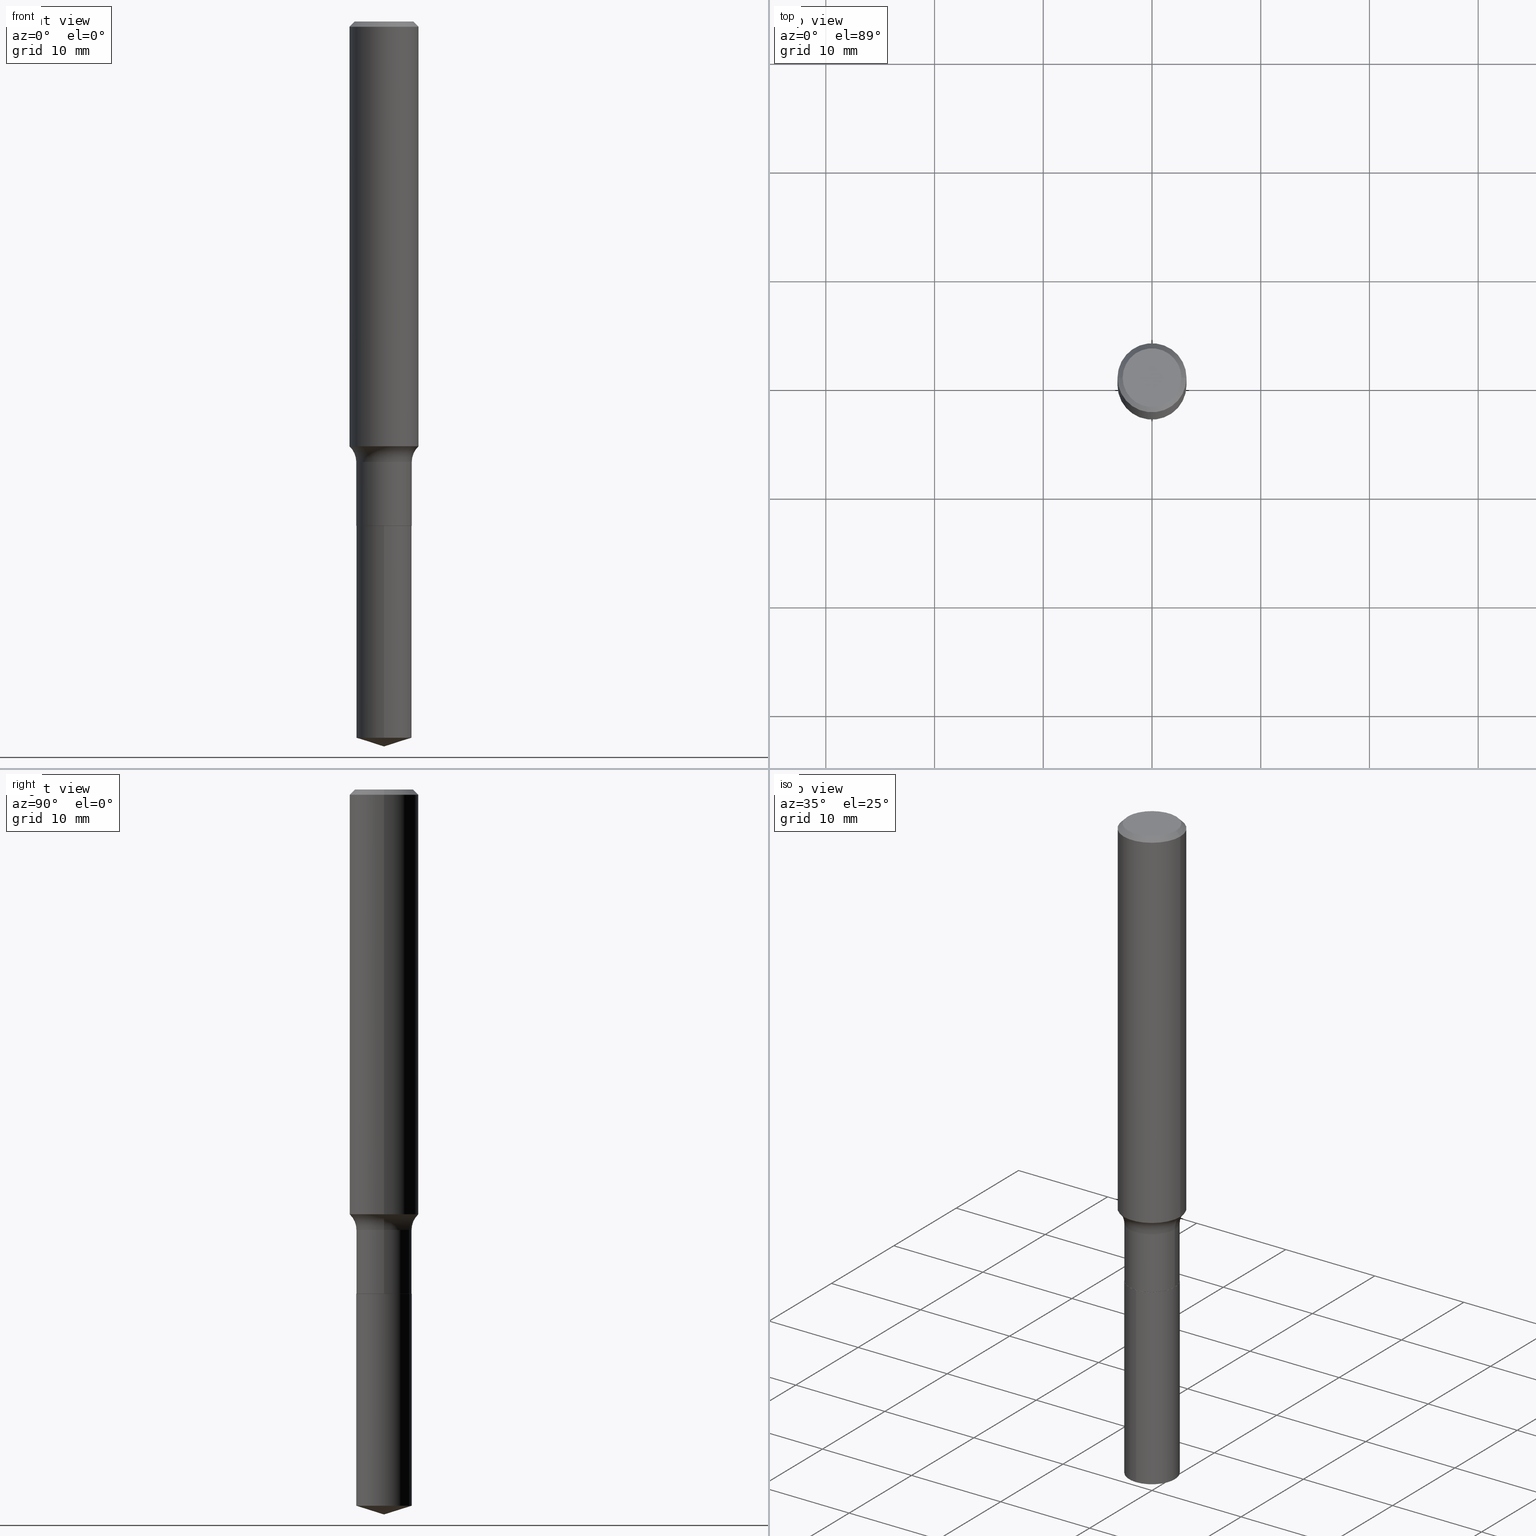
[diagram: canonical four-view strip — front | top / right | iso, engineering-drawing reading convention]
A machine part, canonical four-view strip (front | top / right | iso — engineering-drawing reading convention). The complete STEP part file that produces these views, byte-faithful:
ISO-10303-21;
HEADER;
FILE_DESCRIPTION (( 'STEP AP203' ),
    '1' );
FILE_NAME ('51338.STEP',
    '2024-04-19T12:49:06',
    ( '' ),
    ( '' ),
    'SwSTEP 2.0',
    'SolidWorks 2023',
    '' );
FILE_SCHEMA (( 'CONFIG_CONTROL_DESIGN' ));
ENDSEC;

DATA;
#1 = PRODUCT_DEFINITION_FORMATION_WITH_SPECIFIED_SOURCE ( 'ANY', '', #258, .NOT_KNOWN. ) ;
#2 = EDGE_CURVE ( 'NONE', #38, #292, #124, .T. ) ;
#3 = CARTESIAN_POINT ( 'NONE',  ( 4.585254011597162998E-31, -6.546527510330944066E-17, -0.01875000000000013115 ) ) ;
#4 = ORIENTED_EDGE ( 'NONE', *, *, #52, .T. ) ;
#5 = FACE_OUTER_BOUND ( 'NONE', #218, .T. ) ;
#6 = ORIENTED_EDGE ( 'NONE', *, *, #405, .F. ) ;
#7 =( LENGTH_UNIT ( ) NAMED_UNIT ( * ) SI_UNIT ( $, .METRE. ) );
#8 = ORIENTED_EDGE ( 'NONE', *, *, #235, .T. ) ;
#9 = CC_DESIGN_SECURITY_CLASSIFICATION ( #236, ( #1 ) ) ;
#10 = CARTESIAN_POINT ( 'NONE',  ( 4.585254011597162998E-31, -6.546527510330944066E-17, -0.01875000000000013115 ) ) ;
#11 = EDGE_LOOP ( 'NONE', ( #217, #4, #263, #307 ) ) ;
#12 = DIRECTION ( 'NONE',  ( -2.445468806185136877E-29, 3.491481338843145188E-15, 1.000000000000000000 ) ) ;
#13 = FACE_OUTER_BOUND ( 'NONE', #11, .T. ) ;
#14 = FACE_OUTER_BOUND ( 'NONE', #299, .T. ) ;
#15 = CLOSED_SHELL ( 'NONE', ( #134, #27, #157, #304, #317 ) ) ;
#16 = EDGE_CURVE ( 'NONE', #181, #146, #164, .T. ) ;
#17 = VECTOR ( 'NONE', #156, 39.37007874015748143 ) ;
#18 = CARTESIAN_POINT ( 'NONE',  ( 7.140954494389642327E-16, 0.1004999999999936361, -1.826000000000000512 ) ) ;
#19 = PERSON_AND_ORGANIZATION ( #75, #468 ) ;
#20 = CARTESIAN_POINT ( 'NONE',  ( 6.341812827357289971E-29, -9.054576463095092159E-15, -2.593312471717661882 ) ) ;
#21 = DATE_AND_TIME ( #68, #128 ) ;
#22 = CYLINDRICAL_SURFACE ( 'NONE', #257, 0.1004999999999999921 ) ;
#23 = APPLICATION_PROTOCOL_DEFINITION ( 'international standard', 'config_control_design', 1994, #331 ) ;
#24 = VECTOR ( 'NONE', #41, 39.37007874015748143 ) ;
#25 = CC_DESIGN_APPROVAL ( #314, ( #236 ) ) ;
#26 = CARTESIAN_POINT ( 'NONE',  ( 4.465426040094059556E-29, -6.375444924727584257E-15, -1.826000000000000068 ) ) ;
#27 = ADVANCED_FACE ( 'NONE', ( #464 ), #357, .T. ) ;
#28 = CALENDAR_DATE ( 2024, 19, 4 ) ;
#29 = ORIENTED_EDGE ( 'NONE', *, *, #376, .F. ) ;
#30 = EDGE_CURVE ( 'NONE', #88, #146, #55, .T. ) ;
#31 = AXIS2_PLACEMENT_3D ( 'NONE', #437, #280, #96 ) ;
#32 = AXIS2_PLACEMENT_3D ( 'NONE', #10, #394, #165 ) ;
#33 = VERTEX_POINT ( 'NONE', #237 ) ;
#34 = CARTESIAN_POINT ( 'NONE',  ( 4.465426040094059556E-29, -6.375444924727584257E-15, -1.826000000000000068 ) ) ;
#35 = EDGE_LOOP ( 'NONE', ( #74, #452 ) ) ;
#36 = DIRECTION ( 'NONE',  ( -2.445401132426348956E-29, 3.491578251517480594E-15, 1.000000000000000000 ) ) ;
#37 = CARTESIAN_POINT ( 'NONE',  ( 0.1000000000000000056, -7.073741192496210140E-15, -1.826000000000000068 ) ) ;
#38 = VERTEX_POINT ( 'NONE', #385 ) ;
#39 = EDGE_CURVE ( 'NONE', #77, #38, #268, .T. ) ;
#40 = FACE_OUTER_BOUND ( 'NONE', #70, .T. ) ;
#41 = DIRECTION ( 'NONE',  ( -2.445468806185136877E-29, 3.491481338843145188E-15, 1.000000000000000000 ) ) ;
#42 = LINE ( 'NONE', #315, #162 ) ;
#43 = ORIENTED_EDGE ( 'NONE', *, *, #363, .T. ) ;
#44 = EDGE_CURVE ( 'NONE', #114, #458, #390, .T. ) ;
#45 = VERTEX_POINT ( 'NONE', #211 ) ;
#46 = CIRCLE ( 'NONE', #251, 0.1250000000000000000 ) ;
#47 = AXIS2_PLACEMENT_3D ( 'NONE', #34, #36, #184 ) ;
#48 = DIRECTION ( 'NONE',  ( -2.445468806185136597E-29, 3.491481338843145583E-15, 1.000000000000000000 ) ) ;
#49 = ORIENTED_EDGE ( 'NONE', *, *, #279, .F. ) ;
#50 = FACE_OUTER_BOUND ( 'NONE', #80, .T. ) ;
#51 = DIRECTION ( 'NONE',  ( -6.982962677686265922E-15, -1.000000000000000000, 3.500519750498790812E-15 ) ) ;
#52 = EDGE_CURVE ( 'NONE', #77, #88, #118, .T. ) ;
#53 = DIRECTION ( 'NONE',  ( -2.445468806185136597E-29, 3.491481338843145583E-15, 1.000000000000000000 ) ) ;
#54 = CARTESIAN_POINT ( 'NONE',  ( -0.1784999999999999643, -4.299895655855270678E-15, -1.594800000000000217 ) ) ;
#55 = CIRCLE ( 'NONE', #411, 0.1004999999999999782 ) ;
#56 = COORDINATED_UNIVERSAL_TIME_OFFSET ( 5, 0, .BEHIND. ) ;
#57 = TOROIDAL_SURFACE ( 'NONE', #336, 0.1784999999999999643, 0.07799999999999995826 ) ;
#58 = MANIFOLD_SOLID_BREP ( 'Body-Move/Copy2[1]', #15 ) ;
#59 = DIRECTION ( 'NONE',  ( -6.982962677686265922E-15, -1.000000000000000000, 2.718256710113694497E-15 ) ) ;
#60 = COORDINATED_UNIVERSAL_TIME_OFFSET ( 5, 0, .BEHIND. ) ;
#61 = FACE_OUTER_BOUND ( 'NONE', #341, .T. ) ;
#62 = DATE_TIME_ROLE ( 'classification_date' ) ;
#63 = PRODUCT_DEFINITION ( 'UNKNOWN', '', #1, #360 ) ;
#64 = CARTESIAN_POINT ( 'NONE',  ( -0.1000000000000000056, -5.662252961793372239E-15, -1.826000000000000068 ) ) ;
#65 = CIRCLE ( 'NONE', #483, 0.1000000000000000056 ) ;
#66 = AXIS2_PLACEMENT_3D ( 'NONE', #308, #53, #201 ) ;
#67 = VERTEX_POINT ( 'NONE', #64 ) ;
#68 = CALENDAR_DATE ( 2024, 19, 4 ) ;
#69 = EDGE_CURVE ( 'NONE', #458, #492, #335, .T. ) ;
#70 = EDGE_LOOP ( 'NONE', ( #82, #107 ) ) ;
#71 = CARTESIAN_POINT ( 'NONE',  ( 4.585254011597162998E-31, -6.546527510330944066E-17, -0.01875000000000013115 ) ) ;
#72 = AXIS2_PLACEMENT_3D ( 'NONE', #54, #323, #319 ) ;
#73 = AXIS2_PLACEMENT_3D ( 'NONE', #320, #131, #281 ) ;
#74 = ORIENTED_EDGE ( 'NONE', *, *, #413, .T. ) ;
#75 = PERSON ( 'UNSPECIFIED', 'UNSPECIFIED', 'UNSPECIFIED', ('UNSPECIFIED'), ('UNSPECIFIED'), ('UNSPECIFIED') ) ;
#76 = DIRECTION ( 'NONE',  ( 2.445401132426348676E-29, -3.491578251517480594E-15, -1.000000000000000000 ) ) ;
#77 = VERTEX_POINT ( 'NONE', #212 ) ;
#78 = PRODUCT_DEFINITION_SHAPE ( 'NONE', 'NONE',  #63 ) ;
#79 = LINE ( 'NONE', #344, #17 ) ;
#80 = EDGE_LOOP ( 'NONE', ( #266, #200, #270, #466 ) ) ;
#81 = DIRECTION ( 'NONE',  ( -2.445401132426348956E-29, 3.491578251517480594E-15, 1.000000000000000000 ) ) ;
#82 = ORIENTED_EDGE ( 'NONE', *, *, #86, .F. ) ;
#83 = APPROVAL_PERSON_ORGANIZATION ( #401, #473, #178 ) ;
#84 = DIRECTION ( 'NONE',  ( 1.000000000000000000, -6.982962677686266711E-15, 0.000000000000000000 ) ) ;
#85 = ORIENTED_EDGE ( 'NONE', *, *, #447, .F. ) ;
#86 = EDGE_CURVE ( 'NONE', #250, #67, #229, .T. ) ;
#87 = DIRECTION ( 'NONE',  ( 0.7071067811865450192, -7.319954787623246579E-15, -0.7071067811865500152 ) ) ;
#88 = VERTEX_POINT ( 'NONE', #138 ) ;
#89 = DIRECTION ( 'NONE',  ( 1.000000000000000000, -6.982962677686261977E-15, 0.000000000000000000 ) ) ;
#90 = DIRECTION ( 'NONE',  ( 1.000000000000000000, -6.982962677686261977E-15, 0.000000000000000000 ) ) ;
#91 = AXIS2_PLACEMENT_3D ( 'NONE', #130, #277, #432 ) ;
#92 = CIRCLE ( 'NONE', #230, 0.1005000000000000060 ) ;
#93 = DIRECTION ( 'NONE',  ( -2.445468806185136877E-29, 3.491481338843145188E-15, 1.000000000000000000 ) ) ;
#94 = FACE_OUTER_BOUND ( 'NONE', #347, .T. ) ;
#95 = LENGTH_MEASURE_WITH_UNIT ( LENGTH_MEASURE( 0.02539999999999999897 ), #7 );
#96 = DIRECTION ( 'NONE',  ( 1.000000000000000000, -6.982962677686264344E-15, 0.000000000000000000 ) ) ;
#97 = CARTESIAN_POINT ( 'NONE',  ( 4.464203305690967315E-29, -6.373699184058162754E-15, -1.825500000000000345 ) ) ;
#98 = DIRECTION ( 'NONE',  ( 1.000000000000000000, -6.982962677686264344E-15, 0.000000000000000000 ) ) ;
#99 = COORDINATED_UNIVERSAL_TIME_OFFSET ( 5, 0, .BEHIND. ) ;
#100 = AXIS2_PLACEMENT_3D ( 'NONE', #429, #204, #89 ) ;
#101 = DIRECTION ( 'NONE',  ( -2.445401132426348956E-29, 3.491578251517480594E-15, 1.000000000000000000 ) ) ;
#102 = LINE ( 'NONE', #346, #182 ) ;
#103 = APPROVAL_STATUS ( 'not_yet_approved' ) ;
#104 = EDGE_CURVE ( 'NONE', #250, #181, #126, .T. ) ;
#105 = ORIENTED_EDGE ( 'NONE', *, *, #447, .T. ) ;
#106 = DIRECTION ( 'NONE',  ( -2.445468806185136597E-29, 3.491481338843145583E-15, 1.000000000000000000 ) ) ;
#107 = ORIENTED_EDGE ( 'NONE', *, *, #185, .F. ) ;
#108 = PLANE ( 'NONE',  #135 ) ;
#109 = VECTOR ( 'NONE', #12, 39.37007874015748143 ) ;
#110 = AXIS2_PLACEMENT_3D ( 'NONE', #71, #219, #117 ) ;
#111 = VERTEX_POINT ( 'NONE', #209 ) ;
#112 = FACE_OUTER_BOUND ( 'NONE', #223, .T. ) ;
#113 = EDGE_CURVE ( 'NONE', #38, #146, #300, .T. ) ;
#114 = VERTEX_POINT ( 'NONE', #316 ) ;
#115 = CARTESIAN_POINT ( 'NONE',  ( 4.465426040094059556E-29, -6.375444924727584257E-15, -1.826000000000000068 ) ) ;
#116 = DIRECTION ( 'NONE',  ( -2.445468806185136597E-29, 3.491481338843145583E-15, 1.000000000000000000 ) ) ;
#117 = DIRECTION ( 'NONE',  ( -1.000000000000000000, 6.982962677686266711E-15, 0.000000000000000000 ) ) ;
#118 = CIRCLE ( 'NONE', #72, 0.07799999999999995826 ) ;
#119 = ORIENTED_EDGE ( 'NONE', *, *, #44, .T. ) ;
#120 = EDGE_CURVE ( 'NONE', #202, #297, #420, .T. ) ;
#121 = CIRCLE ( 'NONE', #174, 0.1062499999999999972 ) ;
#122 = ORIENTED_EDGE ( 'NONE', *, *, #438, .F. ) ;
#123 = LINE ( 'NONE', #198, #351 ) ;
#124 = LINE ( 'NONE', #155, #24 ) ;
#125 = DIRECTION ( 'NONE',  ( -2.445468806185136597E-29, 3.491481338843145583E-15, 1.000000000000000000 ) ) ;
#126 = LINE ( 'NONE', #397, #199 ) ;
#127 = CONICAL_SURFACE ( 'NONE', #245, 124.8659371009119781, 1.265363707695884576 ) ;
#128 = LOCAL_TIME ( 8, 49, 6.000000000000000000, #60 ) ;
#129 = DIRECTION ( 'NONE',  ( 1.000000000000000000, -6.982962677686269077E-15, 4.883557194083114022E-29 ) ) ;
#130 = CARTESIAN_POINT ( 'NONE',  ( 4.465426040094059556E-29, -6.375444924727584257E-15, -1.826000000000000068 ) ) ;
#131 = DIRECTION ( 'NONE',  ( 0.000000000000000000, 0.000000000000000000, 1.000000000000000000 ) ) ;
#132 = DIRECTION ( 'NONE',  ( -2.445468806185136597E-29, 3.491481338843145583E-15, 1.000000000000000000 ) ) ;
#133 = DIRECTION ( 'NONE',  ( 1.000000000000000000, -6.982962677686269077E-15, 4.883557194083114022E-29 ) ) ;
#134 = ADVANCED_FACE ( 'NONE', ( #61 ), #474, .T. ) ;
#135 = AXIS2_PLACEMENT_3D ( 'NONE', #115, #150, #224 ) ;
#136 = PERSON_AND_ORGANIZATION ( #75, #468 ) ;
#137 = CIRCLE ( 'NONE', #430, 0.1005000000000000060 ) ;
#138 = CARTESIAN_POINT ( 'NONE',  ( -0.1004999999999999782, -5.256861362183704782E-15, -1.594800000000000217 ) ) ;
#139 = DIRECTION ( 'NONE',  ( -2.445468806185136597E-29, 3.491481338843145583E-15, 1.000000000000000000 ) ) ;
#140 = APPROVAL_DATE_TIME ( #451, #473 ) ;
#141 = ADVANCED_FACE ( 'NONE', ( #94 ), #207, .F. ) ;
#142 = ORIENTED_EDGE ( 'NONE', *, *, #272, .T. ) ;
#143 = COORDINATED_UNIVERSAL_TIME_OFFSET ( 5, 0, .BEHIND. ) ;
#144 = AXIS2_PLACEMENT_3D ( 'NONE', #472, #427, #305 ) ;
#145 = ORIENTED_EDGE ( 'NONE', *, *, #220, .T. ) ;
#146 = VERTEX_POINT ( 'NONE', #392 ) ;
#147 = CARTESIAN_POINT ( 'NONE',  ( 0.1062499999999999972, -8.259777185439879685E-16, 6.505936120475796882E-18 ) ) ;
#148 = ORIENTED_EDGE ( 'NONE', *, *, #16, .T. ) ;
#149 = CC_DESIGN_PERSON_AND_ORGANIZATION_ASSIGNMENT ( #136, #368, ( #258 ) ) ;
#150 = DIRECTION ( 'NONE',  ( -2.438088387897960049E-29, 3.491481338843145188E-15, 1.000000000000000000 ) ) ;
#151 = CONICAL_SURFACE ( 'NONE', #31, 0.1000000000000000056, 0.7853981633975336552 ) ;
#152 = AXIS2_PLACEMENT_3D ( 'NONE', #381, #306, #465 ) ;
#153 = ORIENTED_EDGE ( 'NONE', *, *, #348, .F. ) ;
#154 = FACE_OUTER_BOUND ( 'NONE', #252, .T. ) ;
#155 = CARTESIAN_POINT ( 'NONE',  ( 0.1250000000000000833, -8.728703347107839305E-16, 6.095220969744923945E-30 ) ) ;
#156 = DIRECTION ( 'NONE',  ( -2.445468806185136877E-29, 3.491481338843145188E-15, 1.000000000000000000 ) ) ;
#157 = ADVANCED_FACE ( 'NONE', ( #282 ), #127, .T. ) ;
#158 = DIRECTION ( 'NONE',  ( 1.000000000000000000, -6.982962677686269077E-15, 0.000000000000000000 ) ) ;
#159 = APPLICATION_CONTEXT ( 'configuration controlled 3d designs of mechanical parts and assemblies' ) ;
#160 = AXIS2_PLACEMENT_3D ( 'NONE', #485, #106, #303 ) ;
#161 = ORIENTED_EDGE ( 'NONE', *, *, #203, .F. ) ;
#162 = VECTOR ( 'NONE', #87, 39.37007874015748143 ) ;
#163 = DIRECTION ( 'NONE',  ( -6.982962677686265922E-15, -1.000000000000000000, 2.718256710113694497E-15 ) ) ;
#164 = LINE ( 'NONE', #313, #109 ) ;
#165 = DIRECTION ( 'NONE',  ( 1.000000000000000000, -6.982962677686266711E-15, 0.000000000000000000 ) ) ;
#166 = CARTESIAN_POINT ( 'NONE',  ( 3.900033652104055886E-29, -5.568214439187049453E-15, -1.594800000000000217 ) ) ;
#167 = ADVANCED_FACE ( 'NONE', ( #14 ), #364, .T. ) ;
#168 = DIRECTION ( 'NONE',  ( 1.000000000000000000, -6.982962677686270655E-15, 0.000000000000000000 ) ) ;
#169 = DIRECTION ( 'NONE',  ( 1.000000000000000000, -6.982962677686266711E-15, 4.876176775795935793E-29 ) ) ;
#170 = CARTESIAN_POINT ( 'NONE',  ( 4.465426040094059556E-29, -6.375444924727584257E-15, -1.826000000000000068 ) ) ;
#171 = CALENDAR_DATE ( 2024, 19, 4 ) ;
#172 = ADVANCED_FACE ( 'NONE', ( #442 ), #151, .T. ) ;
#173 = DIRECTION ( 'NONE',  ( -6.982962677686266711E-15, -1.000000000000000000, 3.491481338843145583E-15 ) ) ;
#174 = AXIS2_PLACEMENT_3D ( 'NONE', #243, #125, #478 ) ;
#175 = COORDINATED_UNIVERSAL_TIME_OFFSET ( 5, 0, .BEHIND. ) ;
#176 = AXIS2_PLACEMENT_3D ( 'NONE', #97, #471, #168 ) ;
#177 = PLANE ( 'NONE',  #301 ) ;
#178 = APPROVAL_ROLE ( '' ) ;
#179 = ORIENTED_EDGE ( 'NONE', *, *, #431, .T. ) ;
#180 = PRODUCT_RELATED_PRODUCT_CATEGORY ( 'detail', '', ( #258 ) ) ;
#181 = VERTEX_POINT ( 'NONE', #241 ) ;
#182 = VECTOR ( 'NONE', #453, 39.37007874015748143 ) ;
#183 =( GEOMETRIC_REPRESENTATION_CONTEXT ( 3 ) GLOBAL_UNCERTAINTY_ASSIGNED_CONTEXT ( ( #216 ) ) GLOBAL_UNIT_ASSIGNED_CONTEXT ( ( #433, #196, #240 ) ) REPRESENTATION_CONTEXT ( 'NONE', 'WORKASPACE' ) );
#184 = DIRECTION ( 'NONE',  ( -6.982962677686265922E-15, -1.000000000000000000, 2.718256710113694497E-15 ) ) ;
#185 = EDGE_CURVE ( 'NONE', #67, #250, #65, .T. ) ;
#186 = ORIENTED_EDGE ( 'NONE', *, *, #463, .F. ) ;
#187 = DIRECTION ( 'NONE',  ( 1.000000000000000000, -6.982962677686266711E-15, 4.875930095424100059E-29 ) ) ;
#188 = ORIENTED_EDGE ( 'NONE', *, *, #104, .F. ) ;
#189 = CARTESIAN_POINT ( 'NONE',  ( -7.955031918821649840E-47, 1.135767727816383790E-32, 3.252968060235157457E-18 ) ) ;
#190 = CLOSED_SHELL ( 'NONE', ( #242, #227, #369, #455, #193, #167, #141, #393, #333, #327, #295, #172 ) ) ;
#191 = APPROVAL_PERSON_ORGANIZATION ( #210, #383, #443 ) ;
#192 = ORIENTED_EDGE ( 'NONE', *, *, #272, .F. ) ;
#193 = ADVANCED_FACE ( 'NONE', ( #247 ), #22, .T. ) ;
#194 = CARTESIAN_POINT ( 'NONE',  ( 3.761227713859099469E-29, -5.370036346758668215E-15, -1.538039538409206042 ) ) ;
#195 = ORIENTED_EDGE ( 'NONE', *, *, #220, .F. ) ;
#196 =( NAMED_UNIT ( * ) PLANE_ANGLE_UNIT ( ) SI_UNIT ( $, .RADIAN. ) );
#197 = ORIENTED_EDGE ( 'NONE', *, *, #356, .T. ) ;
#198 = CARTESIAN_POINT ( 'NONE',  ( -0.1004999999999999921, 7.140954494389006308E-16, -4.943529765706180112E-30 ) ) ;
#199 = VECTOR ( 'NONE', #248, 39.37007874015748143 ) ;
#200 = ORIENTED_EDGE ( 'NONE', *, *, #39, .T. ) ;
#201 = DIRECTION ( 'NONE',  ( 1.000000000000000000, -6.982962677686270655E-15, 0.000000000000000000 ) ) ;
#202 = VERTEX_POINT ( 'NONE', #18 ) ;
#203 = EDGE_CURVE ( 'NONE', #492, #297, #484, .T. ) ;
#204 = DIRECTION ( 'NONE',  ( -2.445468806185136597E-29, 3.491481338843145583E-15, 1.000000000000000000 ) ) ;
#205 = DIRECTION ( 'NONE',  ( -2.445401132426348956E-29, 3.491578251517480594E-15, 1.000000000000000000 ) ) ;
#206 = DIRECTION ( 'NONE',  ( -2.445468806185136597E-29, 3.491481338843145583E-15, 1.000000000000000000 ) ) ;
#207 = TOROIDAL_SURFACE ( 'NONE', #467, 0.1784999999999999643, 0.07799999999999995826 ) ;
#208 = CIRCLE ( 'NONE', #176, 0.1004999999999999921 ) ;
#209 = CARTESIAN_POINT ( 'NONE',  ( -0.1062499999999999972, 7.746724220558198188E-16, 6.505936120465012444E-18 ) ) ;
#210 = PERSON_AND_ORGANIZATION ( #75, #468 ) ;
#211 = CARTESIAN_POINT ( 'NONE',  ( -0.1250000000000000000, -1.829572391230862659E-15, -0.01875000000000013115 ) ) ;
#212 = CARTESIAN_POINT ( 'NONE',  ( -0.1250000000000001388, -4.481857927058541405E-15, -1.538039538409206042 ) ) ;
#213 = AXIS2_PLACEMENT_3D ( 'NONE', #3, #330, #412 ) ;
#214 = PERSON_AND_ORGANIZATION ( #75, #468 ) ;
#215 = ORIENTED_EDGE ( 'NONE', *, *, #16, .F. ) ;
#216 = UNCERTAINTY_MEASURE_WITH_UNIT (LENGTH_MEASURE( 1.000000000000000082E-05 ), #433, 'distance_accuracy_value', 'NONE');
#217 = ORIENTED_EDGE ( 'NONE', *, *, #39, .F. ) ;
#218 = EDGE_LOOP ( 'NONE', ( #408, #234, #371, #188 ) ) ;
#219 = DIRECTION ( 'NONE',  ( 2.445468806185136597E-29, -3.491481338843145583E-15, -1.000000000000000000 ) ) ;
#220 = EDGE_CURVE ( 'NONE', #114, #492, #102, .T. ) ;
#221 = LOCAL_TIME ( 8, 49, 6.000000000000000000, #99 ) ;
#222 = FACE_OUTER_BOUND ( 'NONE', #296, .T. ) ;
#223 = EDGE_LOOP ( 'NONE', ( #337, #422, #352, #488 ) ) ;
#224 = DIRECTION ( 'NONE',  ( 1.000000000000000000, -6.982962677686265922E-15, 4.876176775795935793E-29 ) ) ;
#225 = MANIFOLD_SOLID_BREP ( 'Body-Move/Copy2[2]', #190 ) ;
#226 = ORIENTED_EDGE ( 'NONE', *, *, #489, .F. ) ;
#227 = ADVANCED_FACE ( 'NONE', ( #222 ), #309, .T. ) ;
#228 = CYLINDRICAL_SURFACE ( 'NONE', #152, 0.1250000000000000833 ) ;
#229 = CIRCLE ( 'NONE', #457, 0.1000000000000000056 ) ;
#230 = AXIS2_PLACEMENT_3D ( 'NONE', #259, #81, #267 ) ;
#231 = CARTESIAN_POINT ( 'NONE',  ( 3.761227713859099469E-29, -5.370036346758668215E-15, -1.538039538409206042 ) ) ;
#232 = CARTESIAN_POINT ( 'NONE',  ( -7.017877491074251076E-16, -0.1005000000000063759, -1.825999999999999845 ) ) ;
#233 = ORIENTED_EDGE ( 'NONE', *, *, #489, .T. ) ;
#234 = ORIENTED_EDGE ( 'NONE', *, *, #279, .T. ) ;
#235 = EDGE_CURVE ( 'NONE', #45, #292, #46, .T. ) ;
#236 = SECURITY_CLASSIFICATION ( '', '', #332 ) ;
#237 = CARTESIAN_POINT ( 'NONE',  ( -0.1004999999999999921, -5.256861362183704782E-15, -1.825500000000000345 ) ) ;
#238 = LINE ( 'NONE', #469, #269 ) ;
#239 = DIRECTION ( 'NONE',  ( -2.445468806185136597E-29, 3.491481338843145583E-15, 1.000000000000000000 ) ) ;
#240 =( NAMED_UNIT ( * ) SI_UNIT ( $, .STERADIAN. ) SOLID_ANGLE_UNIT ( ) );
#241 = CARTESIAN_POINT ( 'NONE',  ( 0.1004999999999999921, -7.075486933165632432E-15, -1.825500000000000345 ) ) ;
#242 = ADVANCED_FACE ( 'NONE', ( #5 ), #380, .T. ) ;
#243 = CARTESIAN_POINT ( 'NONE',  ( -1.591006383764329968E-46, 2.271535455632767580E-32, 6.505936120470314915E-18 ) ) ;
#244 = DIRECTION ( 'NONE',  ( 1.000000000000000000, -6.982962677686261977E-15, 0.000000000000000000 ) ) ;
#245 = AXIS2_PLACEMENT_3D ( 'NONE', #321, #101, #51 ) ;
#246 = LOCAL_TIME ( 8, 49, 6.000000000000000000, #56 ) ;
#247 = FACE_OUTER_BOUND ( 'NONE', #409, .T. ) ;
#248 = DIRECTION ( 'NONE',  ( 0.7071067811866078578, -2.468850131082888544E-15, 0.7071067811864871766 ) ) ;
#249 = APPROVAL_STATUS ( 'not_yet_approved' ) ;
#250 = VERTEX_POINT ( 'NONE', #37 ) ;
#251 = AXIS2_PLACEMENT_3D ( 'NONE', #460, #491, #84 ) ;
#252 = EDGE_LOOP ( 'NONE', ( #197, #43, #122, #271 ) ) ;
#253 = ORIENTED_EDGE ( 'NONE', *, *, #44, .F. ) ;
#254 = EDGE_CURVE ( 'NONE', #458, #202, #374, .T. ) ;
#255 = DIRECTION ( 'NONE',  ( -1.000000000000000000, 6.982962677686265922E-15, -4.876176775795935793E-29 ) ) ;
#256 = ORIENTED_EDGE ( 'NONE', *, *, #254, .T. ) ;
#257 = AXIS2_PLACEMENT_3D ( 'NONE', #395, #132, #359 ) ;
#258 = PRODUCT ( '51338', '51338', '', ( #426 ) ) ;
#259 = CARTESIAN_POINT ( 'NONE',  ( 6.341812827357289971E-29, -9.054576463095092159E-15, -2.593312471717661882 ) ) ;
#260 = CIRCLE ( 'NONE', #328, 0.1250000000000001665 ) ;
#261 = ORIENTED_EDGE ( 'NONE', *, *, #463, .T. ) ;
#262 = DIRECTION ( 'NONE',  ( 6.982962677686265922E-15, 1.000000000000000000, -3.491578251517480594E-15 ) ) ;
#263 = ORIENTED_EDGE ( 'NONE', *, *, #30, .T. ) ;
#264 = CARTESIAN_POINT ( 'NONE',  ( -0.1000000000000000056, -5.664902188967483441E-15, -1.826000000000000068 ) ) ;
#265 = CC_DESIGN_PERSON_AND_ORGANIZATION_ASSIGNMENT ( #214, #322, ( #236 ) ) ;
#266 = ORIENTED_EDGE ( 'NONE', *, *, #363, .F. ) ;
#267 = DIRECTION ( 'NONE',  ( -6.982962677686265922E-15, -1.000000000000000000, 5.436513420227388995E-15 ) ) ;
#268 = CIRCLE ( 'NONE', #318, 0.1250000000000001665 ) ;
#269 = VECTOR ( 'NONE', #354, 39.37007874015748143 ) ;
#270 = ORIENTED_EDGE ( 'NONE', *, *, #2, .T. ) ;
#271 = ORIENTED_EDGE ( 'NONE', *, *, #2, .F. ) ;
#272 = EDGE_CURVE ( 'NONE', #111, #334, #404, .T. ) ;
#273 = CARTESIAN_POINT ( 'NONE',  ( -7.017877491074060763E-16, -0.1005000000000090266, -2.593312471717660994 ) ) ;
#274 = EDGE_LOOP ( 'NONE', ( #226, #192, #179, #8 ) ) ;
#275 = CARTESIAN_POINT ( 'NONE',  ( 0.000000000000000000, 0.000000000000000000, 0.000000000000000000 ) ) ;
#276 = APPROVAL_PERSON_ORGANIZATION ( #291, #314, #439 ) ;
#277 = DIRECTION ( 'NONE',  ( -2.445401132426348956E-29, 3.491578251517480594E-15, 1.000000000000000000 ) ) ;
#278 = DIRECTION ( 'NONE',  ( -2.445468806185136597E-29, 3.491481338843145583E-15, 1.000000000000000000 ) ) ;
#279 = EDGE_CURVE ( 'NONE', #67, #33, #462, .T. ) ;
#280 = DIRECTION ( 'NONE',  ( -2.445468806185136597E-29, 3.491481338843145583E-15, 1.000000000000000000 ) ) ;
#281 = DIRECTION ( 'NONE',  ( 1.000000000000000000, 0.000000000000000000, 0.000000000000000000 ) ) ;
#282 = FACE_OUTER_BOUND ( 'NONE', #416, .T. ) ;
#283 = DATE_AND_TIME ( #28, #293 ) ;
#284 = CARTESIAN_POINT ( 'NONE',  ( 0.000000000000000000, 0.000000000000000000, 0.000000000000000000 ) ) ;
#285 = AXIS2_PLACEMENT_3D ( 'NONE', #480, #173, #244 ) ;
#286 = CALENDAR_DATE ( 2024, 19, 4 ) ;
#287 = CARTESIAN_POINT ( 'NONE',  ( -7.017877491074251076E-16, -0.1005000000000063759, -1.825999999999999845 ) ) ;
#288 = PERSON_AND_ORGANIZATION_ROLE ( 'creator' ) ;
#289 = CC_DESIGN_PERSON_AND_ORGANIZATION_ASSIGNMENT ( #19, #407, ( #1 ) ) ;
#290 = DIRECTION ( 'NONE',  ( 2.438088387897960049E-29, -3.491481338843145188E-15, -1.000000000000000000 ) ) ;
#291 = PERSON_AND_ORGANIZATION ( #75, #468 ) ;
#292 = VERTEX_POINT ( 'NONE', #340 ) ;
#293 = LOCAL_TIME ( 8, 49, 6.000000000000000000, #175 ) ;
#294 = APPROVAL_STATUS ( 'not_yet_approved' ) ;
#295 = ADVANCED_FACE ( 'NONE', ( #40 ), #108, .F. ) ;
#296 = EDGE_LOOP ( 'NONE', ( #186, #233, #353, #345 ) ) ;
#297 = VERTEX_POINT ( 'NONE', #232 ) ;
#298 = CARTESIAN_POINT ( 'NONE',  ( -1.591006383764329968E-46, 2.271535455632767580E-32, 6.505936120470314915E-18 ) ) ;
#299 = EDGE_LOOP ( 'NONE', ( #85, #450, #148, #414 ) ) ;
#300 = CIRCLE ( 'NONE', #285, 0.07799999999999995826 ) ;
#301 = AXIS2_PLACEMENT_3D ( 'NONE', #189, #290, #255 ) ;
#302 = CARTESIAN_POINT ( 'NONE',  ( 4.465426040094059556E-29, -6.375444924727584257E-15, -1.826000000000000068 ) ) ;
#303 = DIRECTION ( 'NONE',  ( 1.000000000000000000, -6.982962677686264344E-15, 0.000000000000000000 ) ) ;
#304 = ADVANCED_FACE ( 'NONE', ( #112 ), #378, .T. ) ;
#305 = DIRECTION ( 'NONE',  ( -6.982962677686265922E-15, -1.000000000000000000, 3.500519750498790812E-15 ) ) ;
#306 = DIRECTION ( 'NONE',  ( -2.445468806185136597E-29, 3.491481338843145583E-15, 1.000000000000000000 ) ) ;
#307 = ORIENTED_EDGE ( 'NONE', *, *, #113, .F. ) ;
#308 = CARTESIAN_POINT ( 'NONE',  ( 4.464203305690967315E-29, -6.373699184058162754E-15, -1.825500000000000345 ) ) ;
#309 = CONICAL_SURFACE ( 'NONE', #213, 0.1250000000000000000, 0.7853981633974447263 ) ;
#310 = AXIS2_PLACEMENT_3D ( 'NONE', #275, #278, #435 ) ;
#311 = ORIENTED_EDGE ( 'NONE', *, *, #69, .F. ) ;
#312 = APPLICATION_PROTOCOL_DEFINITION ( 'international standard', 'config_control_design', 1994, #159 ) ;
#313 = CARTESIAN_POINT ( 'NONE',  ( 0.1004999999999999921, -7.017877491074697768E-16, 4.900557659674914995E-30 ) ) ;
#314 = APPROVAL ( #103, 'UNSPECIFIED' ) ;
#315 = CARTESIAN_POINT ( 'NONE',  ( 0.1250000000000000000, -9.230275248247509846E-16, -0.01875000000000013115 ) ) ;
#316 = CARTESIAN_POINT ( 'NONE',  ( 6.419177972619165729E-29, -9.165392910233385967E-15, -2.625000000000000000 ) ) ;
#317 = ADVANCED_FACE ( 'NONE', ( #338 ), #490, .F. ) ;
#318 = AXIS2_PLACEMENT_3D ( 'NONE', #231, #382, #158 ) ;
#319 = DIRECTION ( 'NONE',  ( -1.000000000000000000, 7.105427357601001859E-15, 0.000000000000000000 ) ) ;
#320 = CARTESIAN_POINT ( 'NONE',  ( 0.000000000000000000, 0.000000000000000000, 0.000000000000000000 ) ) ;
#321 = CARTESIAN_POINT ( 'NONE',  ( -8.985633358999291276E-28, 1.282984947419745467E-13, 36.74507874015748143 ) ) ;
#322 = PERSON_AND_ORGANIZATION_ROLE ( 'classification_officer' ) ;
#323 = DIRECTION ( 'NONE',  ( 7.105427357601001859E-15, 1.000000000000000000, -3.491481338843145583E-15 ) ) ;
#324 = AXIS2_PLACEMENT_3D ( 'NONE', #481, #367, #59 ) ;
#325 = DIRECTION ( 'NONE',  ( -2.445468806185136597E-29, 3.491481338843145583E-15, 1.000000000000000000 ) ) ;
#326 = AXIS2_PLACEMENT_3D ( 'NONE', #302, #76, #262 ) ;
#327 = ADVANCED_FACE ( 'NONE', ( #456 ), #177, .F. ) ;
#328 = AXIS2_PLACEMENT_3D ( 'NONE', #194, #415, #375 ) ;
#329 = PERSON_AND_ORGANIZATION ( #75, #468 ) ;
#330 = DIRECTION ( 'NONE',  ( 2.445468806185136597E-29, -3.491481338843145583E-15, -1.000000000000000000 ) ) ;
#331 = APPLICATION_CONTEXT ( 'configuration controlled 3d designs of mechanical parts and assemblies' ) ;
#332 = SECURITY_CLASSIFICATION_LEVEL ( 'unclassified' ) ;
#333 = ADVANCED_FACE ( 'NONE', ( #417 ), #389, .T. ) ;
#334 = VERTEX_POINT ( 'NONE', #147 ) ;
#335 = CIRCLE ( 'NONE', #372, 0.1005000000000000060 ) ;
#336 = AXIS2_PLACEMENT_3D ( 'NONE', #476, #48, #129 ) ;
#337 = ORIENTED_EDGE ( 'NONE', *, *, #254, .F. ) ;
#338 = FACE_OUTER_BOUND ( 'NONE', #35, .T. ) ;
#339 = ORIENTED_EDGE ( 'NONE', *, *, #52, .F. ) ;
#340 = CARTESIAN_POINT ( 'NONE',  ( 0.1250000000000000000, -9.383356098140928781E-16, -0.01875000000000013115 ) ) ;
#341 = EDGE_LOOP ( 'NONE', ( #349, #256, #418, #161 ) ) ;
#342 = CC_DESIGN_PERSON_AND_ORGANIZATION_ASSIGNMENT ( #329, #445, ( #1 ) ) ;
#343 = VECTOR ( 'NONE', #444, 39.37007874015748143 ) ;
#344 = CARTESIAN_POINT ( 'NONE',  ( -0.1250000000000000833, 8.881784197001258240E-16, -6.148668862818636431E-30 ) ) ;
#345 = ORIENTED_EDGE ( 'NONE', *, *, #431, .F. ) ;
#346 = CARTESIAN_POINT ( 'NONE',  ( 6.419177972619165729E-29, -9.165392910233385967E-15, -2.625000000000000000 ) ) ;
#347 = EDGE_LOOP ( 'NONE', ( #339, #379, #425, #387 ) ) ;
#348 = EDGE_CURVE ( 'NONE', #492, #458, #92, .T. ) ;
#349 = ORIENTED_EDGE ( 'NONE', *, *, #348, .T. ) ;
#350 = VECTOR ( 'NONE', #421, 39.37007874015748143 ) ;
#351 = VECTOR ( 'NONE', #93, 39.37007874015748143 ) ;
#352 = ORIENTED_EDGE ( 'NONE', *, *, #203, .T. ) ;
#353 = ORIENTED_EDGE ( 'NONE', *, *, #438, .T. ) ;
#354 = DIRECTION ( 'NONE',  ( -0.7071067811865450192, 2.468850131082230634E-15, -0.7071067811865500152 ) ) ;
#355 = CARTESIAN_POINT ( 'NONE',  ( 3.900033652104055886E-29, -5.568214439187049453E-15, -1.594800000000000217 ) ) ;
#356 = EDGE_CURVE ( 'NONE', #38, #77, #260, .T. ) ;
#357 = CONICAL_SURFACE ( 'NONE', #144, 124.8659371009119781, 1.265363707695884576 ) ;
#358 = CIRCLE ( 'NONE', #100, 0.1004999999999999782 ) ;
#359 = DIRECTION ( 'NONE',  ( 1.000000000000000000, -6.982962677686266711E-15, 4.876176775795935793E-29 ) ) ;
#360 = DESIGN_CONTEXT ( 'detailed design', #331, 'design' ) ;
#361 = DIRECTION ( 'NONE',  ( 1.000000000000000000, -6.982962677686264344E-15, 0.000000000000000000 ) ) ;
#362 = DATE_TIME_ROLE ( 'creation_date' ) ;
#363 = EDGE_CURVE ( 'NONE', #77, #45, #79, .T. ) ;
#364 = CYLINDRICAL_SURFACE ( 'NONE', #366, 0.1004999999999999921 ) ;
#365 = PERSON_AND_ORGANIZATION ( #75, #468 ) ;
#366 = AXIS2_PLACEMENT_3D ( 'NONE', #284, #325, #169 ) ;
#367 = DIRECTION ( 'NONE',  ( -2.445401132426348956E-29, 3.491578251517480594E-15, 1.000000000000000000 ) ) ;
#368 = PERSON_AND_ORGANIZATION_ROLE ( 'design_owner' ) ;
#369 = ADVANCED_FACE ( 'NONE', ( #154 ), #228, .T. ) ;
#370 = EDGE_LOOP ( 'NONE', ( #142, #261 ) ) ;
#371 = ORIENTED_EDGE ( 'NONE', *, *, #479, .F. ) ;
#372 = AXIS2_PLACEMENT_3D ( 'NONE', #20, #205, #477 ) ;
#373 = CIRCLE ( 'NONE', #32, 0.1250000000000000000 ) ;
#374 = LINE ( 'NONE', #410, #440 ) ;
#375 = DIRECTION ( 'NONE',  ( 1.000000000000000000, -6.982962677686269077E-15, 0.000000000000000000 ) ) ;
#376 = EDGE_CURVE ( 'NONE', #33, #181, #208, .T. ) ;
#377 = EDGE_LOOP ( 'NONE', ( #49, #454, #406, #29 ) ) ;
#378 = CYLINDRICAL_SURFACE ( 'NONE', #47, 0.1005000000000000060 ) ;
#379 = ORIENTED_EDGE ( 'NONE', *, *, #356, .F. ) ;
#380 = CONICAL_SURFACE ( 'NONE', #160, 0.1000000000000000056, 0.7853981633975336552 ) ;
#381 = CARTESIAN_POINT ( 'NONE',  ( 0.000000000000000000, 0.000000000000000000, 0.000000000000000000 ) ) ;
#382 = DIRECTION ( 'NONE',  ( -2.445468806185136597E-29, 3.491481338843145583E-15, 1.000000000000000000 ) ) ;
#383 = APPROVAL ( #249, 'UNSPECIFIED' ) ;
#384 = DIRECTION ( 'NONE',  ( -2.445401132426348956E-29, 3.491578251517480594E-15, 1.000000000000000000 ) ) ;
#385 = CARTESIAN_POINT ( 'NONE',  ( 0.1250000000000001388, -6.242906681469453132E-15, -1.538039538409206042 ) ) ;
#386 = DIRECTION ( 'NONE',  ( -2.445401132426348956E-29, 3.491578251517480594E-15, 1.000000000000000000 ) ) ;
#387 = ORIENTED_EDGE ( 'NONE', *, *, #405, .T. ) ;
#388 = CARTESIAN_POINT ( 'NONE',  ( 7.140954494389638383E-16, 0.1004999999999909299, -2.593312471717662326 ) ) ;
#389 = CONICAL_SURFACE ( 'NONE', #110, 0.1250000000000000000, 0.7853981633974447263 ) ;
#390 = LINE ( 'NONE', #434, #448 ) ;
#391 = CYLINDRICAL_SURFACE ( 'NONE', #310, 0.1250000000000000833 ) ;
#392 = CARTESIAN_POINT ( 'NONE',  ( 0.1004999999999999782, -6.270002188294518342E-15, -1.594800000000000217 ) ) ;
#393 = ADVANCED_FACE ( 'NONE', ( #50 ), #391, .T. ) ;
#394 = DIRECTION ( 'NONE',  ( -2.445468806185136597E-29, 3.491481338843145583E-15, 1.000000000000000000 ) ) ;
#395 = CARTESIAN_POINT ( 'NONE',  ( 0.000000000000000000, 0.000000000000000000, 0.000000000000000000 ) ) ;
#396 = CIRCLE ( 'NONE', #66, 0.1004999999999999921 ) ;
#397 = CARTESIAN_POINT ( 'NONE',  ( 0.1000000000000000056, -7.073741192496210140E-15, -1.826000000000000068 ) ) ;
#398 = DATE_AND_TIME ( #286, #246 ) ;
#399 = CC_DESIGN_DATE_AND_TIME_ASSIGNMENT ( #283, #362, ( #63 ) ) ;
#400 = DIRECTION ( 'NONE',  ( -2.445468806185136597E-29, 3.491481338843145583E-15, 1.000000000000000000 ) ) ;
#401 = PERSON_AND_ORGANIZATION ( #75, #468 ) ;
#402 = DIRECTION ( 'NONE',  ( 6.776566513254242360E-15, 0.9537169507482265995, 0.3007057995042739518 ) ) ;
#403 = APPROVAL_DATE_TIME ( #21, #314 ) ;
#404 = CIRCLE ( 'NONE', #475, 0.1062499999999999972 ) ;
#405 = EDGE_CURVE ( 'NONE', #146, #88, #358, .T. ) ;
#406 = ORIENTED_EDGE ( 'NONE', *, *, #104, .T. ) ;
#407 = PERSON_AND_ORGANIZATION_ROLE ( 'creator' ) ;
#408 = ORIENTED_EDGE ( 'NONE', *, *, #86, .T. ) ;
#409 = EDGE_LOOP ( 'NONE', ( #461, #105, #6, #215 ) ) ;
#410 = CARTESIAN_POINT ( 'NONE',  ( 7.140954494389453000E-16, 0.1004999999999936361, -1.826000000000000512 ) ) ;
#411 = AXIS2_PLACEMENT_3D ( 'NONE', #166, #116, #90 ) ;
#412 = DIRECTION ( 'NONE',  ( -1.000000000000000000, 6.982962677686266711E-15, 0.000000000000000000 ) ) ;
#413 = EDGE_CURVE ( 'NONE', #297, #202, #137, .T. ) ;
#414 = ORIENTED_EDGE ( 'NONE', *, *, #30, .F. ) ;
#415 = DIRECTION ( 'NONE',  ( -2.445468806185136597E-29, 3.491481338843145583E-15, 1.000000000000000000 ) ) ;
#416 = EDGE_LOOP ( 'NONE', ( #253, #145, #311 ) ) ;
#417 = FACE_OUTER_BOUND ( 'NONE', #274, .T. ) ;
#418 = ORIENTED_EDGE ( 'NONE', *, *, #413, .F. ) ;
#419 = CC_DESIGN_PERSON_AND_ORGANIZATION_ASSIGNMENT ( #365, #288, ( #63 ) ) ;
#420 = CIRCLE ( 'NONE', #324, 0.1005000000000000060 ) ;
#421 = DIRECTION ( 'NONE',  ( -0.7071067811866078578, 7.493145998870571886E-15, 0.7071067811864871766 ) ) ;
#422 = ORIENTED_EDGE ( 'NONE', *, *, #69, .T. ) ;
#423 = CC_DESIGN_DATE_AND_TIME_ASSIGNMENT ( #482, #62, ( #236 ) ) ;
#424 = CARTESIAN_POINT ( 'NONE',  ( 4.465426040094059556E-29, -6.375444924727584257E-15, -1.826000000000000068 ) ) ;
#425 = ORIENTED_EDGE ( 'NONE', *, *, #113, .T. ) ;
#426 = MECHANICAL_CONTEXT ( 'NONE', #159, 'mechanical' ) ;
#427 = DIRECTION ( 'NONE',  ( -2.445401132426348956E-29, 3.491578251517480594E-15, 1.000000000000000000 ) ) ;
#428 = DIMENSIONAL_EXPONENTS ( 1.000000000000000000, 0.000000000000000000, 0.000000000000000000, 0.000000000000000000, 0.000000000000000000, 0.000000000000000000, 0.000000000000000000 ) ;
#429 = CARTESIAN_POINT ( 'NONE',  ( 3.900033652104055886E-29, -5.568214439187049453E-15, -1.594800000000000217 ) ) ;
#430 = AXIS2_PLACEMENT_3D ( 'NONE', #424, #386, #163 ) ;
#431 = EDGE_CURVE ( 'NONE', #111, #45, #238, .T. ) ;
#432 = DIRECTION ( 'NONE',  ( -6.982962677686265922E-15, -1.000000000000000000, 2.718256710113694497E-15 ) ) ;
#433 =( CONVERSION_BASED_UNIT ( 'INCH', #95 ) LENGTH_UNIT ( ) NAMED_UNIT ( #428 ) );
#434 = CARTESIAN_POINT ( 'NONE',  ( 6.419427284352380426E-29, -9.165038985146715221E-15, -2.625000000000000000 ) ) ;
#435 = DIRECTION ( 'NONE',  ( 1.000000000000000000, -6.982962677686266711E-15, 4.876176775795935793E-29 ) ) ;
#436 = ADVANCED_BREP_SHAPE_REPRESENTATION ( '51338', ( #58, #225, #73 ), #183 ) ;
#437 = CARTESIAN_POINT ( 'NONE',  ( 4.465426040094059556E-29, -6.375444924727584257E-15, -1.826000000000000068 ) ) ;
#438 = EDGE_CURVE ( 'NONE', #292, #45, #373, .T. ) ;
#439 = APPROVAL_ROLE ( '' ) ;
#440 = VECTOR ( 'NONE', #384, 39.37007874015748143 ) ;
#441 = LOCAL_TIME ( 8, 49, 6.000000000000000000, #143 ) ;
#442 = FACE_OUTER_BOUND ( 'NONE', #377, .T. ) ;
#443 = APPROVAL_ROLE ( '' ) ;
#444 = DIRECTION ( 'NONE',  ( -2.445401132426348956E-29, 3.491578251517480594E-15, 1.000000000000000000 ) ) ;
#445 = PERSON_AND_ORGANIZATION_ROLE ( 'design_supplier' ) ;
#446 = SHAPE_DEFINITION_REPRESENTATION ( #78, #436 ) ;
#447 = EDGE_CURVE ( 'NONE', #33, #88, #123, .T. ) ;
#448 = VECTOR ( 'NONE', #402, 39.37007874015748854 ) ;
#449 = CC_DESIGN_APPROVAL ( #383, ( #63 ) ) ;
#450 = ORIENTED_EDGE ( 'NONE', *, *, #376, .T. ) ;
#451 = DATE_AND_TIME ( #486, #441 ) ;
#452 = ORIENTED_EDGE ( 'NONE', *, *, #120, .T. ) ;
#453 = DIRECTION ( 'NONE',  ( -6.659769872151617100E-15, -0.9537169507482246011, 0.3007057995042806131 ) ) ;
#454 = ORIENTED_EDGE ( 'NONE', *, *, #185, .T. ) ;
#455 = ADVANCED_FACE ( 'NONE', ( #13 ), #57, .F. ) ;
#456 = FACE_OUTER_BOUND ( 'NONE', #370, .T. ) ;
#457 = AXIS2_PLACEMENT_3D ( 'NONE', #26, #400, #361 ) ;
#458 = VERTEX_POINT ( 'NONE', #388 ) ;
#459 = CC_DESIGN_APPROVAL ( #473, ( #1 ) ) ;
#460 = CARTESIAN_POINT ( 'NONE',  ( 4.585254011597162998E-31, -6.546527510330944066E-17, -0.01875000000000013115 ) ) ;
#461 = ORIENTED_EDGE ( 'NONE', *, *, #479, .T. ) ;
#462 = LINE ( 'NONE', #264, #350 ) ;
#463 = EDGE_CURVE ( 'NONE', #334, #111, #121, .T. ) ;
#464 = FACE_OUTER_BOUND ( 'NONE', #470, .T. ) ;
#465 = DIRECTION ( 'NONE',  ( 1.000000000000000000, -6.982962677686266711E-15, 4.876176775795935793E-29 ) ) ;
#466 = ORIENTED_EDGE ( 'NONE', *, *, #235, .F. ) ;
#467 = AXIS2_PLACEMENT_3D ( 'NONE', #355, #239, #133 ) ;
#468 = ORGANIZATION ( 'UNSPECIFIED', 'UNSPECIFIED', '' ) ;
#469 = CARTESIAN_POINT ( 'NONE',  ( -0.1250000000000000000, 8.074050596074738982E-16, -0.01875000000000013115 ) ) ;
#470 = EDGE_LOOP ( 'NONE', ( #195, #119, #153 ) ) ;
#471 = DIRECTION ( 'NONE',  ( -2.445468806185136597E-29, 3.491481338843145583E-15, 1.000000000000000000 ) ) ;
#472 = CARTESIAN_POINT ( 'NONE',  ( -8.985633358999291276E-28, 1.282984947419745467E-13, 36.74507874015748143 ) ) ;
#473 = APPROVAL ( #294, 'UNSPECIFIED' ) ;
#474 = CYLINDRICAL_SURFACE ( 'NONE', #91, 0.1005000000000000060 ) ;
#475 = AXIS2_PLACEMENT_3D ( 'NONE', #298, #139, #187 ) ;
#476 = CARTESIAN_POINT ( 'NONE',  ( 3.900033652104055886E-29, -5.568214439187049453E-15, -1.594800000000000217 ) ) ;
#477 = DIRECTION ( 'NONE',  ( -6.982962677686265922E-15, -1.000000000000000000, 5.436513420227388995E-15 ) ) ;
#478 = DIRECTION ( 'NONE',  ( 1.000000000000000000, -6.982962677686266711E-15, 4.875930095424100059E-29 ) ) ;
#479 = EDGE_CURVE ( 'NONE', #181, #33, #396, .T. ) ;
#480 = CARTESIAN_POINT ( 'NONE',  ( 0.1784999999999999643, -6.814673277154047966E-15, -1.594800000000000217 ) ) ;
#481 = CARTESIAN_POINT ( 'NONE',  ( 4.465426040094059556E-29, -6.375444924727584257E-15, -1.826000000000000068 ) ) ;
#482 = DATE_AND_TIME ( #171, #221 ) ;
#483 = AXIS2_PLACEMENT_3D ( 'NONE', #170, #206, #98 ) ;
#484 = LINE ( 'NONE', #287, #343 ) ;
#485 = CARTESIAN_POINT ( 'NONE',  ( 4.465426040094059556E-29, -6.375444924727584257E-15, -1.826000000000000068 ) ) ;
#486 = CALENDAR_DATE ( 2024, 19, 4 ) ;
#487 = APPROVAL_DATE_TIME ( #398, #383 ) ;
#488 = ORIENTED_EDGE ( 'NONE', *, *, #120, .F. ) ;
#489 = EDGE_CURVE ( 'NONE', #334, #292, #42, .T. ) ;
#490 = PLANE ( 'NONE',  #326 ) ;
#491 = DIRECTION ( 'NONE',  ( -2.445468806185136597E-29, 3.491481338843145583E-15, 1.000000000000000000 ) ) ;
#492 = VERTEX_POINT ( 'NONE', #273 ) ;
ENDSEC;
END-ISO-10303-21;
